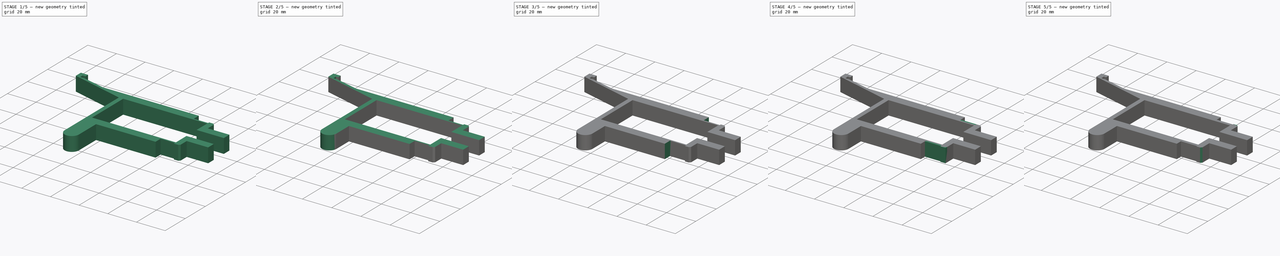
[diagram: build sequence overview — one tinted view per stage of 5, left to right]
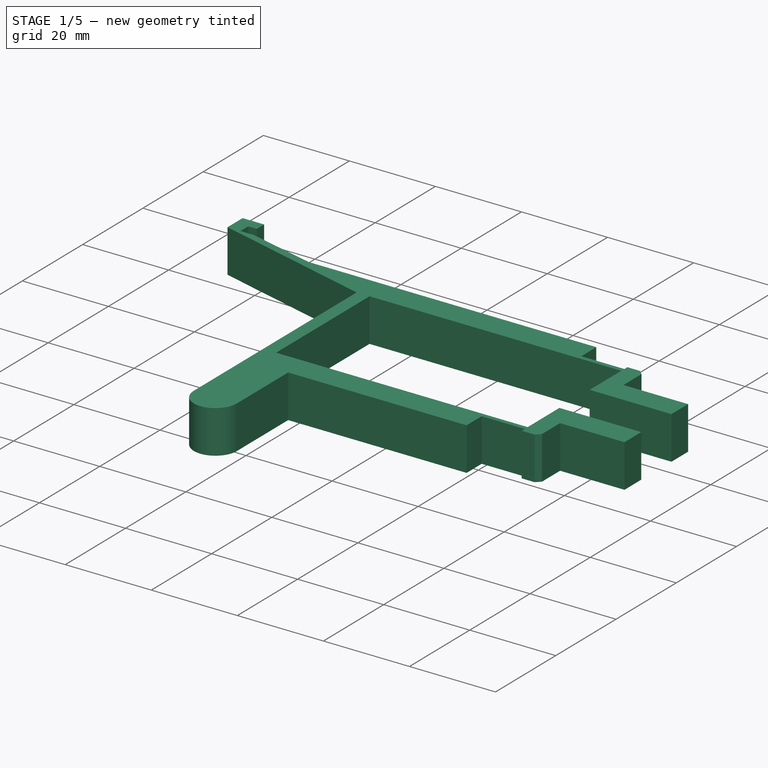
[diagram: stage 1 of 5 — iso view after this stage's code; geometry added in this stage tinted green]
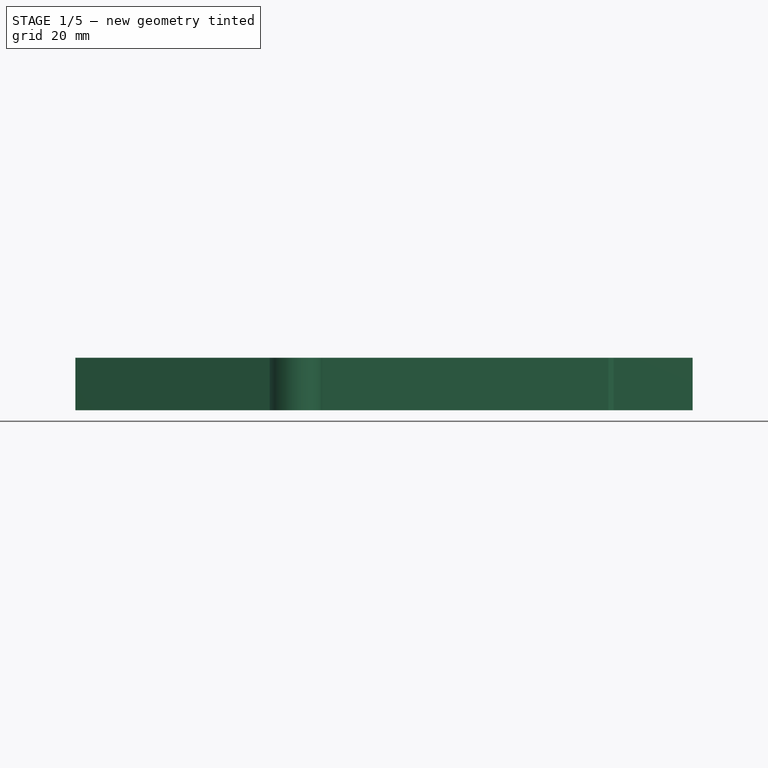
[diagram: stage 1 of 5 — front view after this stage's code; geometry added in this stage tinted green]
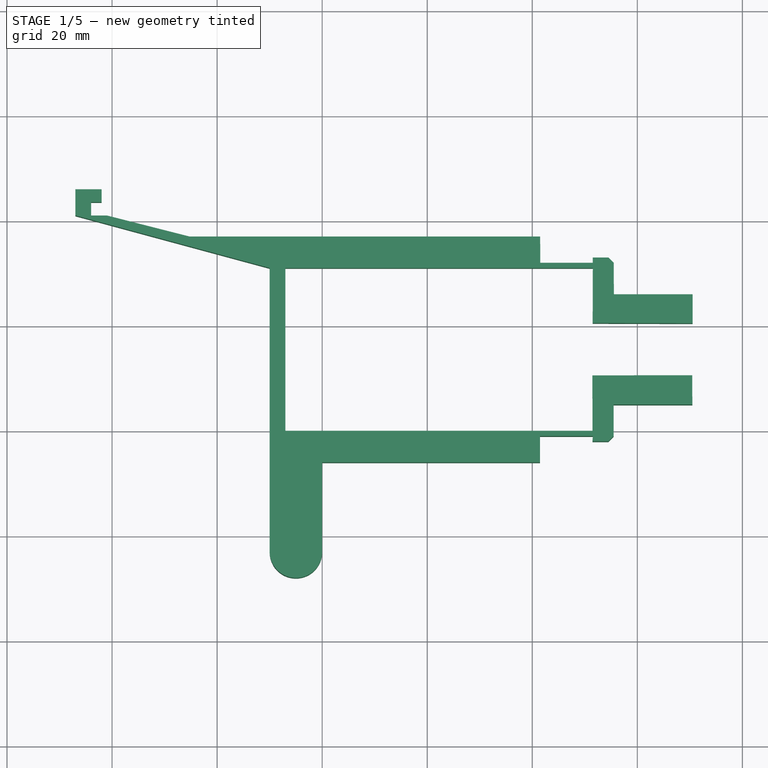
[diagram: stage 1 of 5 — top view after this stage's code; geometry added in this stage tinted green]
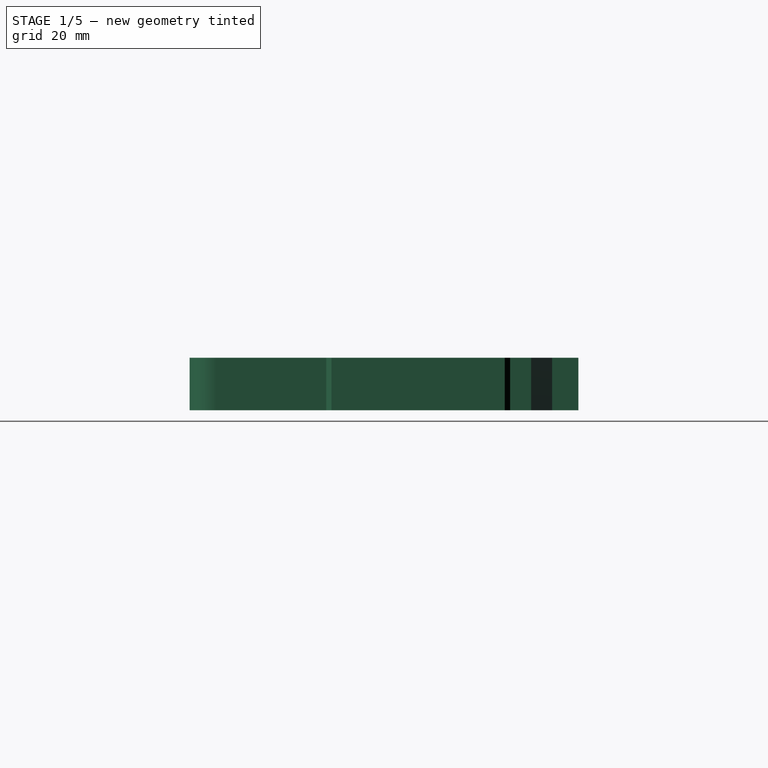
[diagram: stage 1 of 5 — right view after this stage's code; geometry added in this stage tinted green]
FCSTD DOCUMENT  (FreeCAD 0.18R16110 (Git))
Label: sop_baterias
License: All rights reserved
LicenseURL: http://en.wikipedia.org/wiki/All_rights_reserved
objects: Sketcher::SketchObject×13, PartDesign::Pad×6, PartDesign::Pocket×6, PartDesign::Chamfer×4, PartDesign::Body×3
note: 44 computed .brp shape members not serialized (recipe doc carries the construction recipe); baked Part::Feature solids carry a one-line shape summary decoded from their .brp

FEATURE [Sketcher::SketchObject] Sketch
  MapMode = 5
  Support = -> [XY_Plane]
  sketch-geometry (34):
    g0: LineSegment StartX=-7 StartY=0 StartZ=0 EndX=-7 EndY=31 EndZ=0
    g1: LineSegment StartX=-7 StartY=31 StartZ=0 EndX=51.5282 EndY=31 EndZ=0
    g2: LineSegment StartX=51.5282 StartY=31 StartZ=0 EndX=51.4963 EndY=20.5302 EndZ=0
    g3: LineSegment StartX=51.4465 StartY=10.555 StartZ=0 EndX=51.469 EndY=0 EndZ=0
    g4: LineSegment StartX=51.469 StartY=0 StartZ=0 EndX=-7 EndY=0 EndZ=0
    g5: LineSegment StartX=0 StartY=-6 StartZ=0 EndX=3.29e-14 EndY=-23 EndZ=0
    g6: ArcOfCircle CenterX=-5 CenterY=-23.0044 CenterZ=0 NormalX=0 NormalY=0 NormalZ=1 AngleXU=0 Radius=5 StartAngle=3.14071 EndAngle=6.28407
    g7: LineSegment StartX=-10 StartY=-23 StartZ=0 EndX=-10 EndY=31 EndZ=0
    g8: LineSegment StartX=-47 StartY=41 StartZ=0 EndX=-10 EndY=31 EndZ=0
    g9: LineSegment StartX=-47 StartY=41 StartZ=0 EndX=-47 EndY=46 EndZ=0
    g10: LineSegment StartX=-47 StartY=46 StartZ=0 EndX=-42 EndY=46 EndZ=0
    g11: LineSegment StartX=-42 StartY=46 StartZ=0 EndX=-42 EndY=43.55 EndZ=0
    g12: LineSegment StartX=-42 StartY=43.55 StartZ=0 EndX=-44 EndY=43.5476 EndZ=0
    g13: LineSegment StartX=-44 StartY=43.5476 StartZ=0 EndX=-44 EndY=41 EndZ=0
    g14: LineSegment StartX=-44 StartY=41 StartZ=0 EndX=-40.9789 EndY=41 EndZ=0
    g15: LineSegment StartX=-40.9789 StartY=41 StartZ=0 EndX=-25.2581 EndY=37 EndZ=0
    g16: LineSegment StartX=41.4985 StartY=37 StartZ=0 EndX=-25.2581 EndY=37 EndZ=0
    g17: LineSegment StartX=0 StartY=-6 StartZ=0 EndX=41.4771 EndY=-6 EndZ=0
    g18: LineSegment StartX=41.4985 StartY=37 StartZ=0 EndX=41.5299 EndY=32 EndZ=0
    g19: LineSegment StartX=41.5299 StartY=32 StartZ=0 EndX=51.5246 EndY=32 EndZ=0
    g20: LineSegment StartX=51.5246 StartY=32 StartZ=0 EndX=51.5246 EndY=33 EndZ=0
    g21: LineSegment StartX=51.5246 StartY=33 StartZ=0 EndX=55.5112 EndY=33 EndZ=0
    g22: LineSegment StartX=55.5112 StartY=33 StartZ=0 EndX=55.5306 EndY=26 EndZ=0
    g23: LineSegment StartX=55.5306 StartY=26 StartZ=0 EndX=70.5419 EndY=26 EndZ=0
    g24: LineSegment StartX=70.5419 StartY=26 StartZ=0 EndX=70.5419 EndY=20.4833 EndZ=0
    g25: LineSegment StartX=70.5419 StartY=20.4833 StartZ=0 EndX=51.4963 EndY=20.5302 EndZ=0
    g26: LineSegment StartX=41.4771 StartY=-6 StartZ=0 EndX=41.4771 EndY=-1 EndZ=0
    g27: LineSegment StartX=41.4771 StartY=-1 StartZ=0 EndX=51.5337 EndY=-1 EndZ=0
    g28: LineSegment StartX=51.5337 StartY=-1 StartZ=0 EndX=51.4637 EndY=-2 EndZ=0
    g29: LineSegment StartX=51.4637 StartY=-2 StartZ=0 EndX=55.497 EndY=-2 EndZ=0
    g30: LineSegment StartX=55.497 StartY=-2 StartZ=0 EndX=55.497 EndY=5 EndZ=0
    g31: LineSegment StartX=55.497 StartY=5 StartZ=0 EndX=70.4774 EndY=5 EndZ=0
    g32: LineSegment StartX=70.4774 StartY=5 StartZ=0 EndX=70.4536 EndY=10.5801 EndZ=0
    g33: LineSegment StartX=51.4465 StartY=10.555 StartZ=0 EndX=70.4536 EndY=10.5801 EndZ=0
  constraints (31):
    c: Coincident(g0,g1)
    c: Coincident(g1,g2)
    c: Coincident(g3,g4)
    c: Coincident(g4,g0)
    c: Coincident(g6,g5)
    c: Coincident(g9,g10)
    c: Coincident(g10,g11)
    c: Coincident(g11,g12)
    c: Coincident(g12,g13)
    c: Coincident(g13,g14)
    c: Coincident(g14,g15)
    c: Coincident(g15,g16)
    c: Coincident(g5,g17)
    c: Coincident(g16,g18)
    c: Coincident(g18,g19)
    c: Coincident(g19,g20)
    c: Coincident(g20,g21)
    c: Coincident(g22,g23)
    c: Coincident(g23,g24)
    c: Coincident(g24,g25)
    c: Coincident(g2,g25)
    c: Coincident(g17,g26)
    c: Coincident(g26,g27)
    c: Coincident(g27,g28)
    c: Coincident(g28,g29)
    c: Coincident(g29,g30)
    c: Coincident(g30,g31)
    c: Coincident(g31,g32)
    c: Coincident(g32,g33)
    c: Coincident(g3,g33)
    c: Coincident(g22,g21)
FEATURE [PartDesign::Pad] Pad
  Length = 10
  Length2 = 100
  Profile = -> Sketch
  Type = 0
FEATURE [PartDesign::Chamfer] Chamfer
  Base = -> Pad [Edge26]
  BaseFeature = -> Pad
  Size = 1
FEATURE [PartDesign::Chamfer] Chamfer001
  Base = -> Chamfer [Edge96]
  BaseFeature = -> Chamfer
  Size = 1
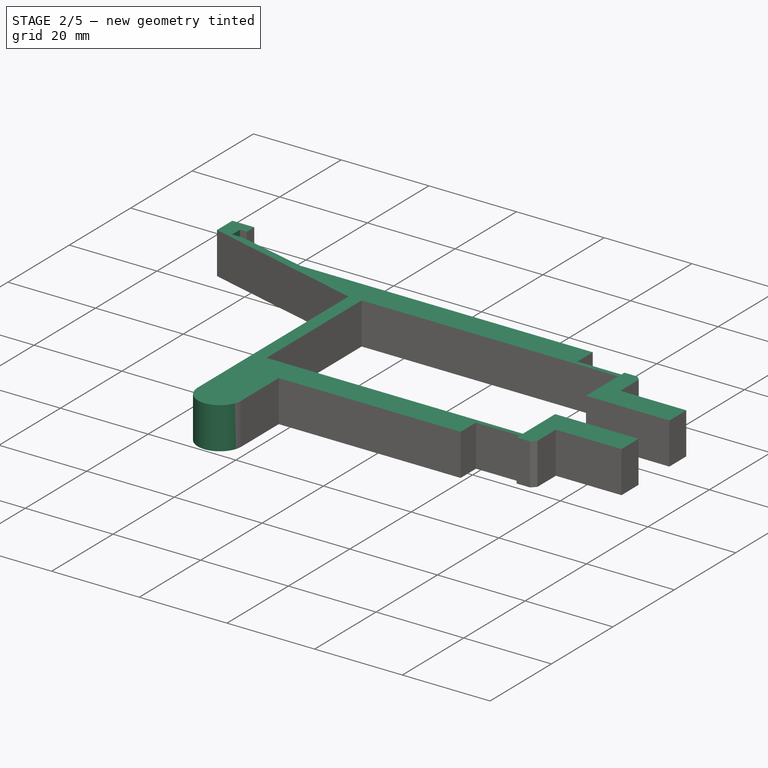
[diagram: stage 2 of 5 — iso view after this stage's code; geometry added in this stage tinted green]
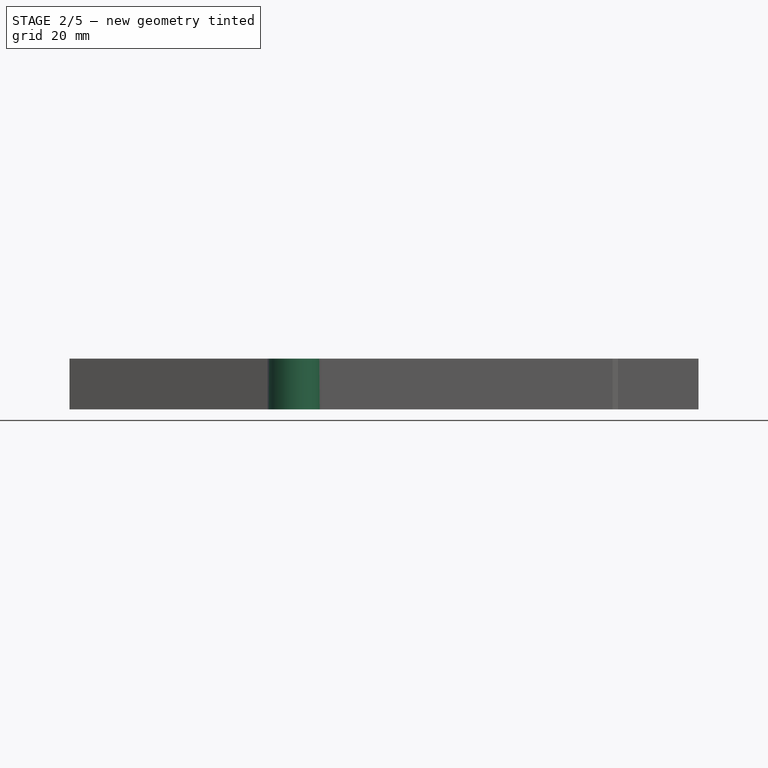
[diagram: stage 2 of 5 — front view after this stage's code; geometry added in this stage tinted green]
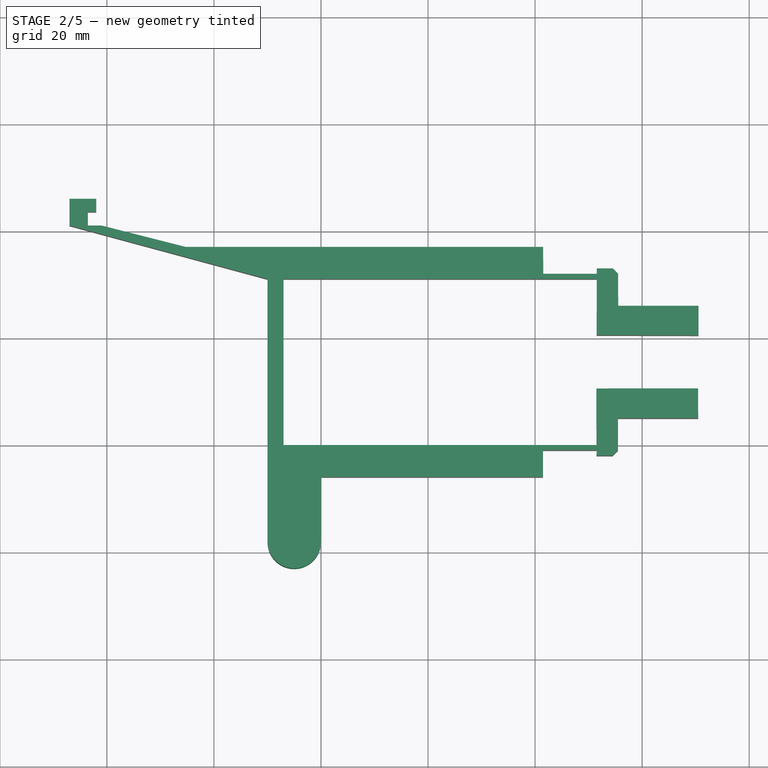
[diagram: stage 2 of 5 — top view after this stage's code; geometry added in this stage tinted green]
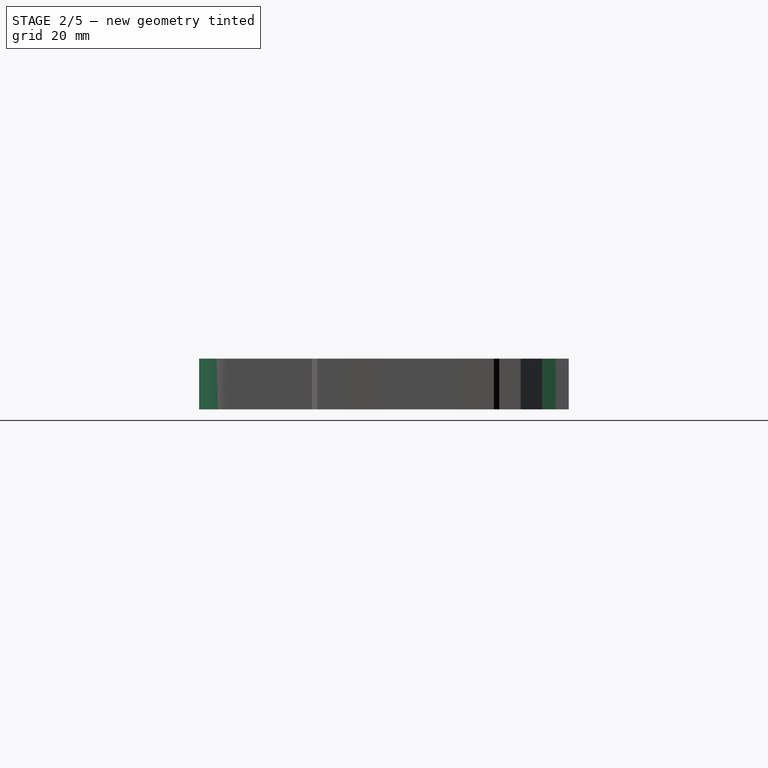
[diagram: stage 2 of 5 — right view after this stage's code; geometry added in this stage tinted green]
FEATURE [Sketcher::SketchObject] Sketch001
  MapMode = 5
  Placement = pos=(-44,0,0) rot=(0.57735,0.57735,0.57735;2.0944rad)
  Support = -> [Chamfer001]
  sketch-geometry (4):
    g0: LineSegment StartX=41 StartY=10 StartZ=0 EndX=43.5484 EndY=10 EndZ=0
    g1: LineSegment StartX=43.5484 StartY=10 StartZ=0 EndX=43.5484 EndY=0 EndZ=0
    g2: LineSegment StartX=43.5484 StartY=0 StartZ=0 EndX=41 EndY=0 EndZ=0
    g3: LineSegment StartX=41 StartY=0 StartZ=0 EndX=41 EndY=10 EndZ=0
  constraints (8):
    c: Coincident(g0,g1)
    c: Coincident(g1,g2)
    c: Coincident(g2,g3)
    c: Coincident(g3,g0)
    c: Horizontal(g0)
    c: Horizontal(g2)
    c: Vertical(g1)
    c: Vertical(g3)
FEATURE [PartDesign::Pad] Pad001
  BaseFeature = -> Chamfer001
  Length = 0.45
  Length2 = 100
  Profile = -> Sketch001
  Type = 0
FEATURE [Sketcher::SketchObject] Sketch002
  MapMode = 5
  Placement = pos=(0,0,10) rot=(0,0,1;0rad)
  Support = -> [Pad001]
  sketch-geometry (5):
    g0: LineSegment StartX=-10.0077 StartY=-23.0046 StartZ=0 EndX=-10 EndY=-18 EndZ=0
    g1: LineSegment StartX=-2.29017e-06 StartY=-18 StartZ=0 EndX=0.00786833 EndY=-23.0049 EndZ=0
    g2: LineSegment StartX=-4.71727 StartY=-28.0001 StartZ=0 EndX=-5.28256 EndY=-28.0001 EndZ=0
    g3: ArcOfCircle CenterX=-5 CenterY=-18.0611 CenterZ=0 NormalX=0 NormalY=0 NormalZ=1 AngleXU=0 Radius=5.00037 StartAngle=3.12938 EndAngle=6.2954
    g4: ArcOfCircle CenterX=-4.99991 CenterY=-23.0003 CenterZ=0 NormalX=0 NormalY=0 NormalZ=1 AngleXU=0 Radius=5.00778 StartAngle=3.14246 EndAngle=6.28227
  constraints (5):
    c: Coincident(g3,g0)
    c: Coincident(g0,g4)
    c: PointOnObject(g2,g4)
    c: PointOnObject(g2,g4)
    c: Coincident(g1,g4)
FEATURE [PartDesign::Pocket] Pocket
  BaseFeature = -> Pad001
  Length = 1020
  Length2 = 100
  Profile = -> Sketch002
  Type = 0
FEATURE [Sketcher::SketchObject] Sketch003
  MapMode = 5
  Placement = pos=(0,0,10) rot=(0,0,1;0rad)
  Support = -> [Pocket]
  sketch-geometry (4):
    g0: LineSegment StartX=-50 StartY=50 StartZ=0 EndX=80 EndY=50 EndZ=0
    g1: LineSegment StartX=80 StartY=50 StartZ=0 EndX=80 EndY=-30 EndZ=0
    g2: LineSegment StartX=80 StartY=-30 StartZ=0 EndX=-50 EndY=-30 EndZ=0
    g3: LineSegment StartX=-50 StartY=-30 StartZ=0 EndX=-50 EndY=50 EndZ=0
  constraints (4):
    c: Coincident(g0,g1)
    c: Coincident(g1,g2)
    c: Coincident(g2,g3)
    c: Coincident(g3,g0)
FEATURE [PartDesign::Body] Body
  Group = -> [Sketch,Pad,Chamfer,Chamfer001,Sketch001,Pad001,Sketch002,Pocket,Sketch003]
  Origin = -> Origin
  Tip = -> Pocket
FEATURE [PartDesign::Body] Body001
  Origin = -> Origin001
FEATURE [Sketcher::SketchObject] Sketch005
  MapMode = 5
  Placement = pos=(0,-6,0) rot=(1,0,0;1.5708rad)
  sketch-geometry (4):
    g0: LineSegment StartX=41 StartY=0 StartZ=0 EndX=41.5032 EndY=0 EndZ=0
    g1: LineSegment StartX=41.5032 StartY=0 StartZ=0 EndX=41.5016 EndY=9.50732 EndZ=0
    g2: LineSegment StartX=41.5016 StartY=9.50732 StartZ=0 EndX=40.9896 EndY=9.50984 EndZ=0
    g3: LineSegment StartX=40.9896 StartY=9.50984 StartZ=0 EndX=41 EndY=0 EndZ=0
  constraints (4):
    c: Coincident(g0,g1)
    c: Coincident(g1,g2)
    c: Coincident(g2,g3)
    c: Coincident(g3,g0)
FEATURE [PartDesign::Pocket] Pocket001
  Length = 0.5
  Length2 = 100
  Profile = -> Sketch003
  Type = 0
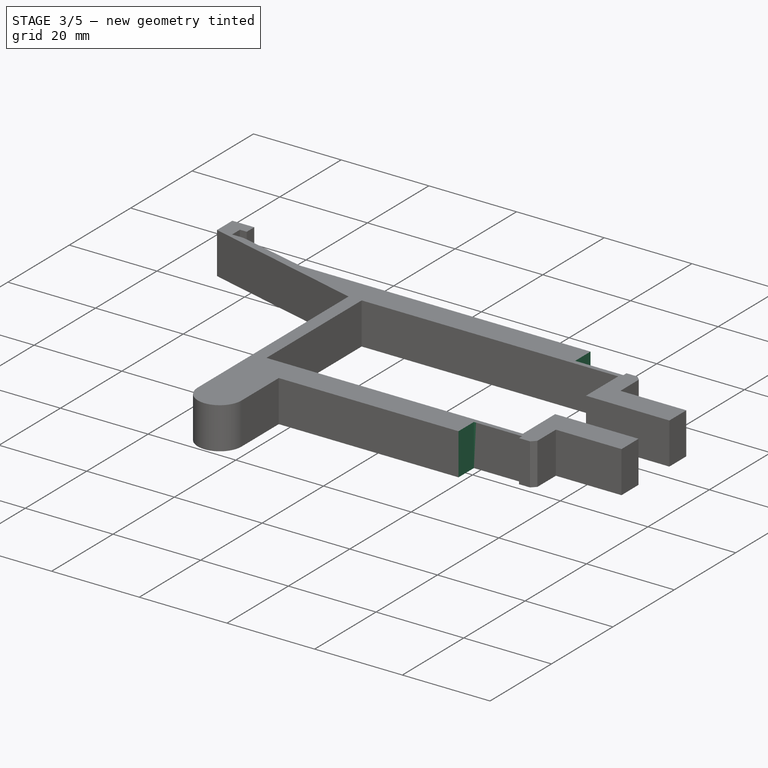
[diagram: stage 3 of 5 — iso view after this stage's code; geometry added in this stage tinted green]
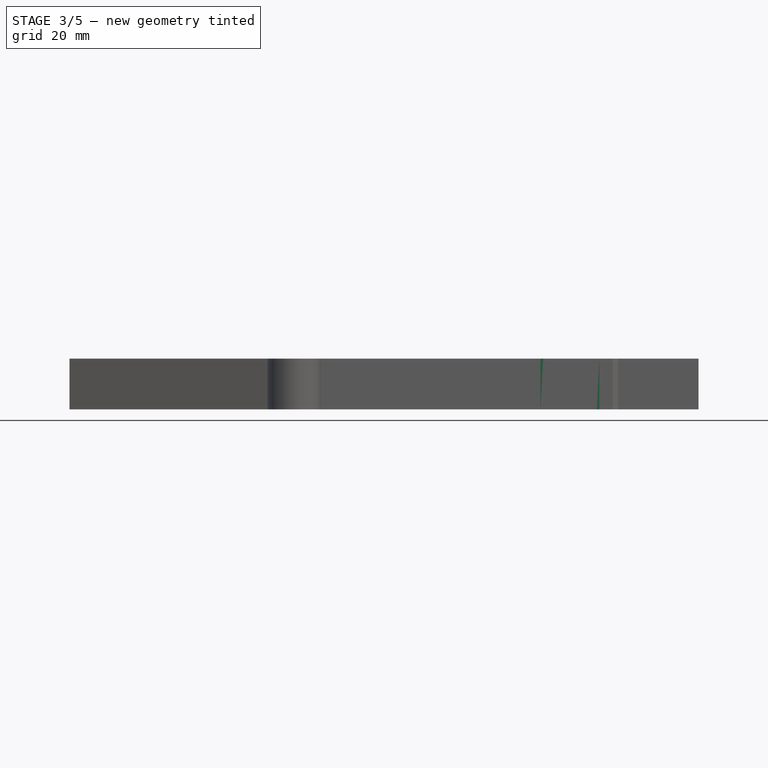
[diagram: stage 3 of 5 — front view after this stage's code; geometry added in this stage tinted green]
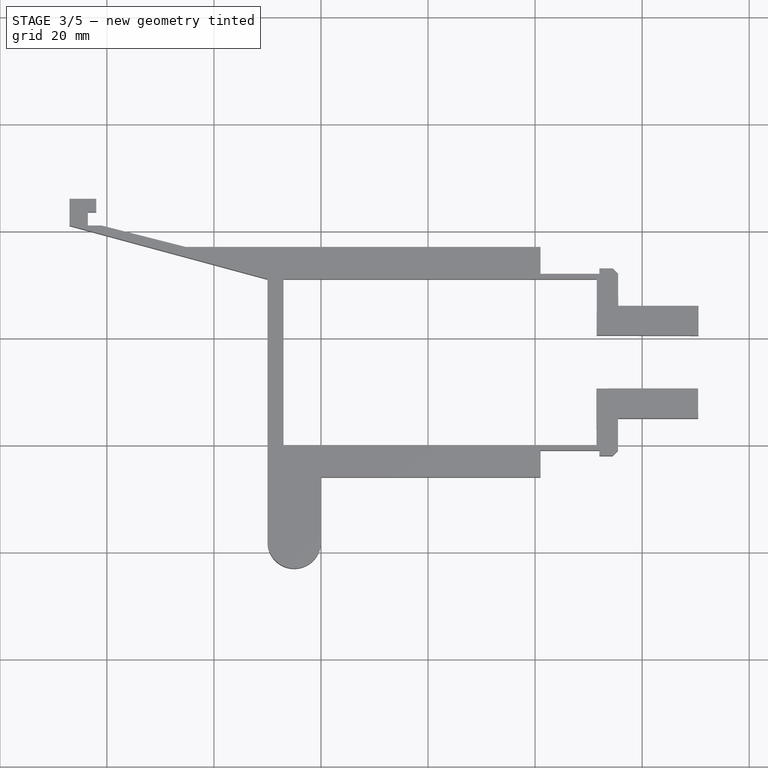
[diagram: stage 3 of 5 — top view after this stage's code; geometry added in this stage tinted green]
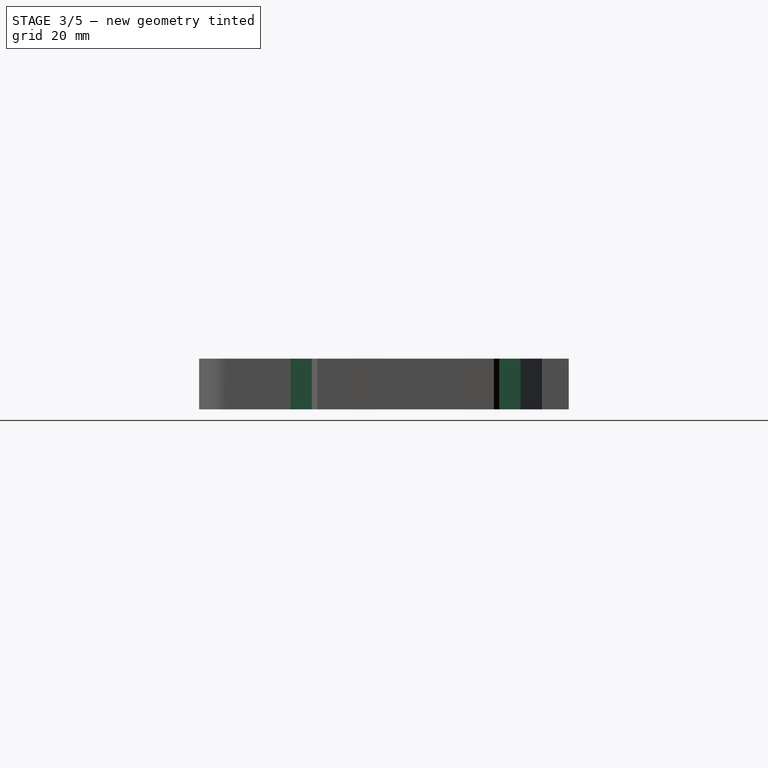
[diagram: stage 3 of 5 — right view after this stage's code; geometry added in this stage tinted green]
FEATURE [Sketcher::SketchObject] Sketch004
  MapMode = 5
  Placement = pos=(0,37,0) rot=(0,0.707107,0.707107;3.14159rad)
  Support = -> [Pocket001]
  sketch-geometry (4):
    g0: LineSegment StartX=-41 StartY=-0.229916 StartZ=0 EndX=-41.6486 EndY=-0.287341 EndZ=0
    g1: LineSegment StartX=-41.6486 StartY=-0.287341 StartZ=0 EndX=-41.6727 EndY=9.52591 EndZ=0
    g2: LineSegment StartX=-41.6727 StartY=9.52591 StartZ=0 EndX=-41 EndY=9.54024 EndZ=0
    g3: LineSegment StartX=-41 StartY=9.54024 StartZ=0 EndX=-41 EndY=-0.229916 EndZ=0
  constraints (4):
    c: Coincident(g0,g1)
    c: Coincident(g1,g2)
    c: Coincident(g2,g3)
    c: Coincident(g3,g0)
FEATURE [PartDesign::Pocket] Pocket002
  BaseFeature = -> Pocket001
  Length = 5
  Length2 = 100
  Profile = -> Sketch004
  Type = 0
FEATURE [PartDesign::Pocket] Pocket003
  BaseFeature = -> Pocket002
  Length = 5.001
  Length2 = 100
  Profile = -> Sketch005
  Type = 0
FEATURE [Sketcher::SketchObject] Sketch006
  MapMode = 5
  Placement = pos=(0,33,0) rot=(0,0.707107,0.707107;3.14159rad)
  Support = -> [Pocket003]
  sketch-geometry (4):
    g0: LineSegment StartX=-51.4965 StartY=0 StartZ=0 EndX=-52 EndY=0 EndZ=0
    g1: LineSegment StartX=-52 StartY=0 StartZ=0 EndX=-52 EndY=9.50483 EndZ=0
    g2: LineSegment StartX=-52 StartY=9.50483 StartZ=0 EndX=-51.5166 EndY=9.50872 EndZ=0
    g3: LineSegment StartX=-51.5166 StartY=9.50872 StartZ=0 EndX=-51.4965 EndY=0 EndZ=0
  constraints (4):
    c: Coincident(g0,g1)
    c: Coincident(g1,g2)
    c: Coincident(g2,g3)
    c: Coincident(g3,g0)
FEATURE [PartDesign::Pocket] Pocket004
  BaseFeature = -> Pocket003
  Length = 1
  Length2 = 100
  Profile = -> Sketch006
  Type = 0
FEATURE [Sketcher::SketchObject] Sketch007
  MapMode = 5
  Placement = pos=(0,-2,0) rot=(1,0,0;1.5708rad)
  Support = -> [Pocket004]
  sketch-geometry (4):
    g0: LineSegment StartX=51.4502 StartY=9.52189 StartZ=0 EndX=52 EndY=9.51554 EndZ=0
    g1: LineSegment StartX=52 StartY=9.51554 StartZ=0 EndX=52 EndY=0 EndZ=0
    g2: LineSegment StartX=52 StartY=0 StartZ=0 EndX=51.444 EndY=0 EndZ=0
    g3: LineSegment StartX=51.444 StartY=0 StartZ=0 EndX=51.4502 EndY=9.52189 EndZ=0
  constraints (4):
    c: Coincident(g0,g1)
    c: Coincident(g1,g2)
    c: Coincident(g2,g3)
    c: Coincident(g3,g0)
FEATURE [PartDesign::Pocket] Pocket005
  BaseFeature = -> Pocket004
  Length = 1
  Length2 = 100
  Profile = -> Sketch007
  Type = 0
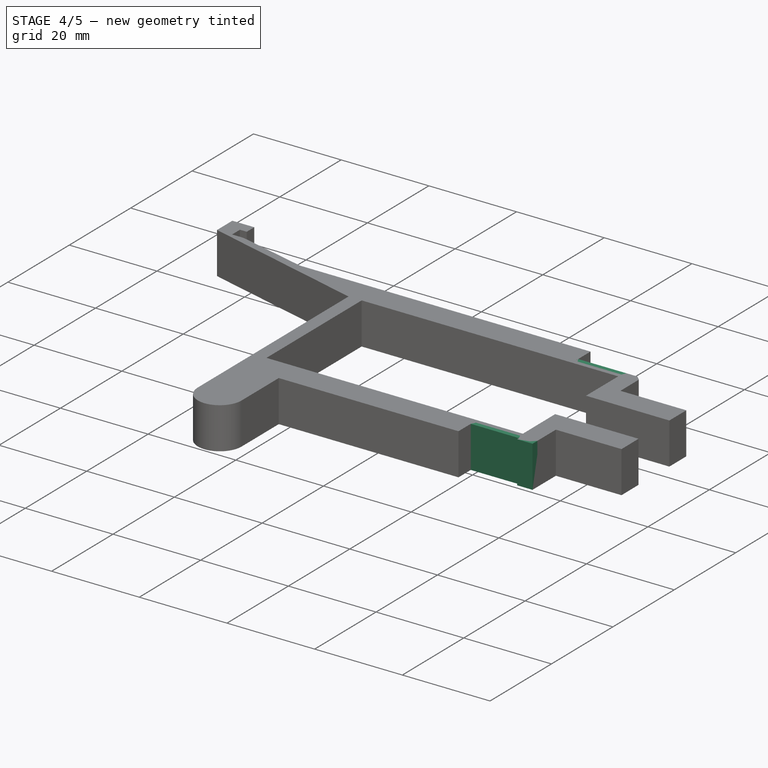
[diagram: stage 4 of 5 — iso view after this stage's code; geometry added in this stage tinted green]
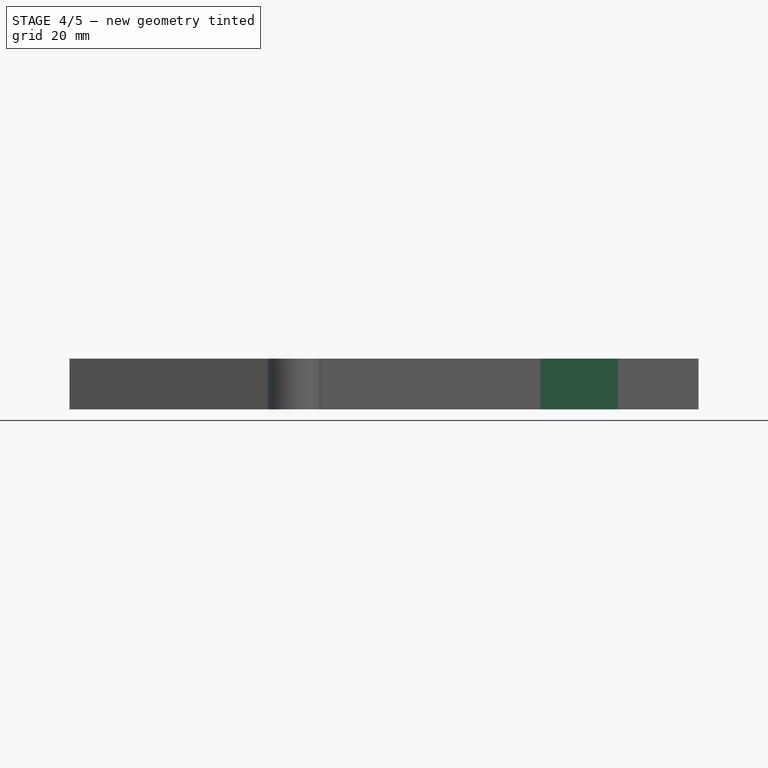
[diagram: stage 4 of 5 — front view after this stage's code; geometry added in this stage tinted green]
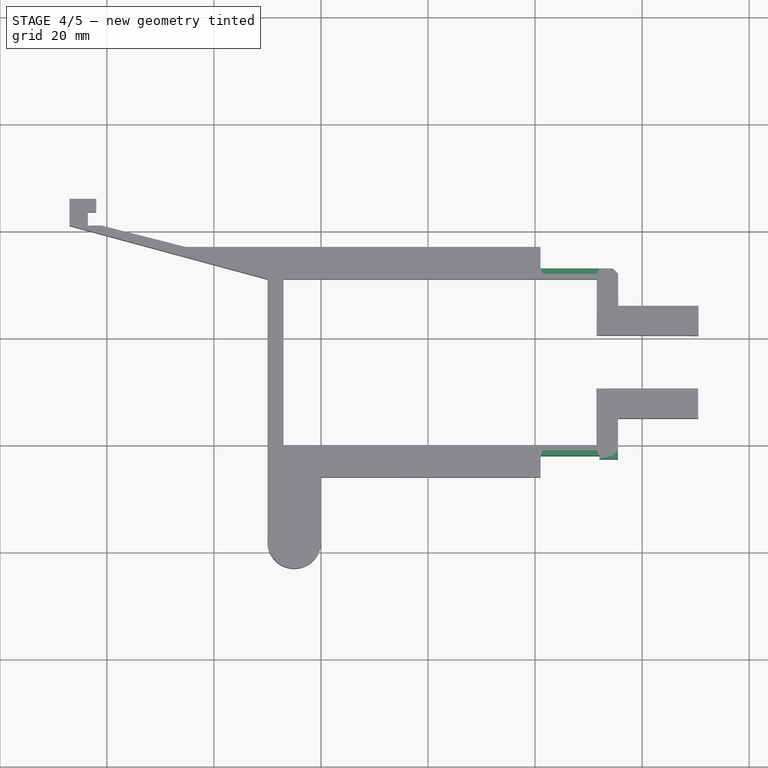
[diagram: stage 4 of 5 — top view after this stage's code; geometry added in this stage tinted green]
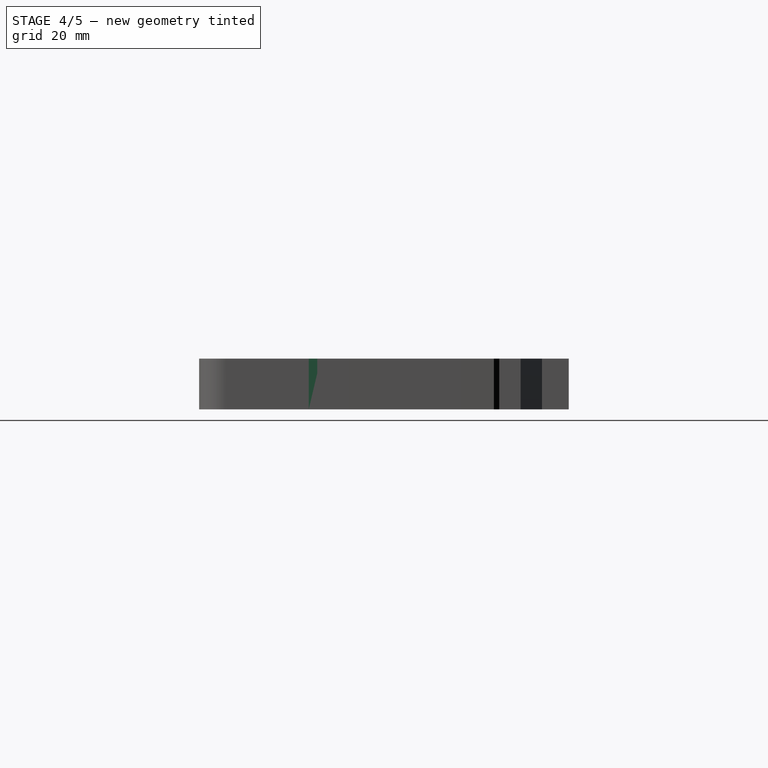
[diagram: stage 4 of 5 — right view after this stage's code; geometry added in this stage tinted green]
FEATURE [Sketcher::SketchObject] Sketch008
  MapMode = 5
  Placement = pos=(0,0,9.5) rot=(0,0,1;0rad)
  Support = -> [Pocket005]
FEATURE [Sketcher::SketchObject] Sketch009
  MapMode = 5
  Placement = pos=(0,32,0) rot=(0,0.707107,0.707107;3.14159rad)
  Support = -> [Pocket005]
  sketch-geometry (4):
    g0: LineSegment StartX=-52 StartY=0 StartZ=0 EndX=-41 EndY=0 EndZ=0
    g1: LineSegment StartX=-41 StartY=0 StartZ=0 EndX=-41 EndY=9.48515 EndZ=0
    g2: LineSegment StartX=-41 StartY=9.48515 StartZ=0 EndX=-52 EndY=9.49928 EndZ=0
    g3: LineSegment StartX=-52 StartY=9.49928 StartZ=0 EndX=-52 EndY=0 EndZ=0
  constraints (4):
    c: Coincident(g0,g1)
    c: Coincident(g1,g2)
    c: Coincident(g2,g3)
    c: Coincident(g3,g0)
FEATURE [PartDesign::Pad] Pad002
  BaseFeature = -> Pocket005
  Length = 1
  Length2 = 100
  Profile = -> Sketch009
  Type = 0
FEATURE [Sketcher::SketchObject] Sketch010
  MapMode = 5
  Placement = pos=(0,-1,0) rot=(1,0,0;1.5708rad)
  Support = -> [Pad002]
  sketch-geometry (4):
    g0: LineSegment StartX=41 StartY=0 StartZ=0 EndX=52 EndY=0 EndZ=0
    g1: LineSegment StartX=52 StartY=0 StartZ=0 EndX=52 EndY=9.4946 EndZ=0
    g2: LineSegment StartX=52 StartY=9.4946 StartZ=0 EndX=41 EndY=9.49995 EndZ=0
    g3: LineSegment StartX=41 StartY=9.49995 StartZ=0 EndX=41 EndY=0 EndZ=0
  constraints (4):
    c: Coincident(g0,g1)
    c: Coincident(g1,g2)
    c: Coincident(g2,g3)
    c: Coincident(g3,g0)
FEATURE [PartDesign::Pad] Pad003
  BaseFeature = -> Pad002
  Length = 1
  Length2 = 100
  Profile = -> Sketch010
  Type = 0
FEATURE [Sketcher::SketchObject] Sketch011
  MapMode = 5
  Placement = pos=(0,5,0) rot=(1,0,0;1.5708rad)
  Support = -> [Pad003]
  sketch-geometry (4):
    g0: LineSegment StartX=52 StartY=0 StartZ=0 EndX=55.4972 EndY=0 EndZ=0
    g1: LineSegment StartX=55.4972 StartY=0 StartZ=0 EndX=55.4969 EndY=9.49942 EndZ=0
    g2: LineSegment StartX=55.4969 StartY=9.49942 StartZ=0 EndX=52 EndY=9.49896 EndZ=0
    g3: LineSegment StartX=52 StartY=9.49896 StartZ=0 EndX=52 EndY=0 EndZ=0
  constraints (4):
    c: Coincident(g0,g1)
    c: Coincident(g1,g2)
    c: Coincident(g2,g3)
    c: Coincident(g3,g0)
FEATURE [PartDesign::Pad] Pad004
  BaseFeature = -> Pad003
  Length = 7.6
  Length2 = 100
  Profile = -> Sketch011
  Type = 0
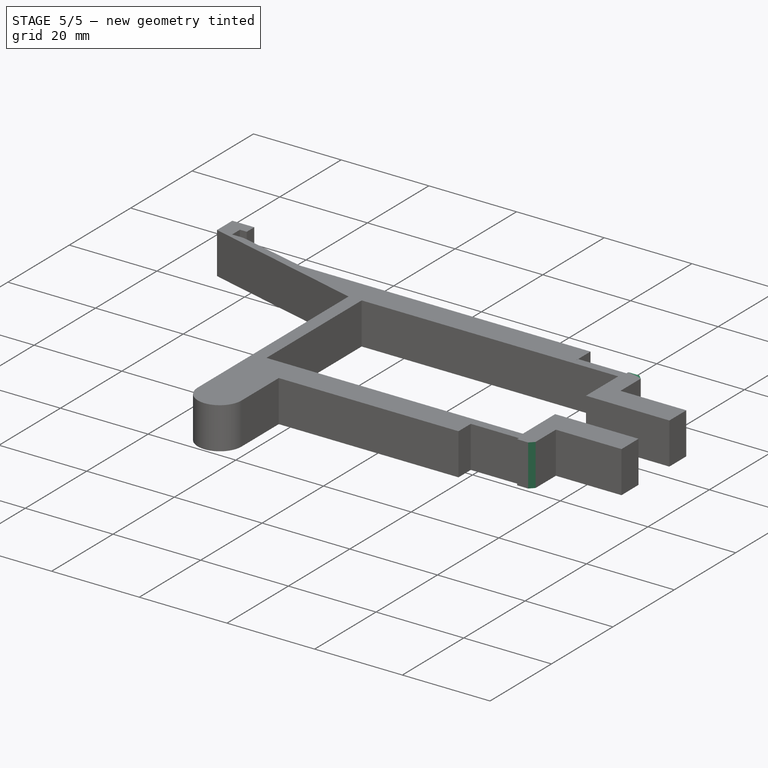
[diagram: stage 5 of 5 — iso view after this stage's code; geometry added in this stage tinted green]
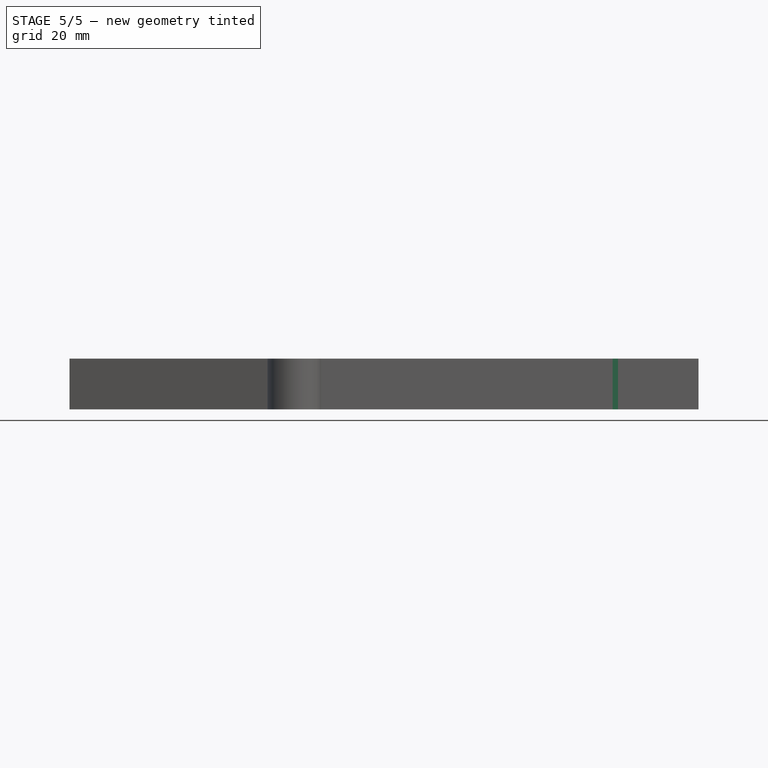
[diagram: stage 5 of 5 — front view after this stage's code; geometry added in this stage tinted green]
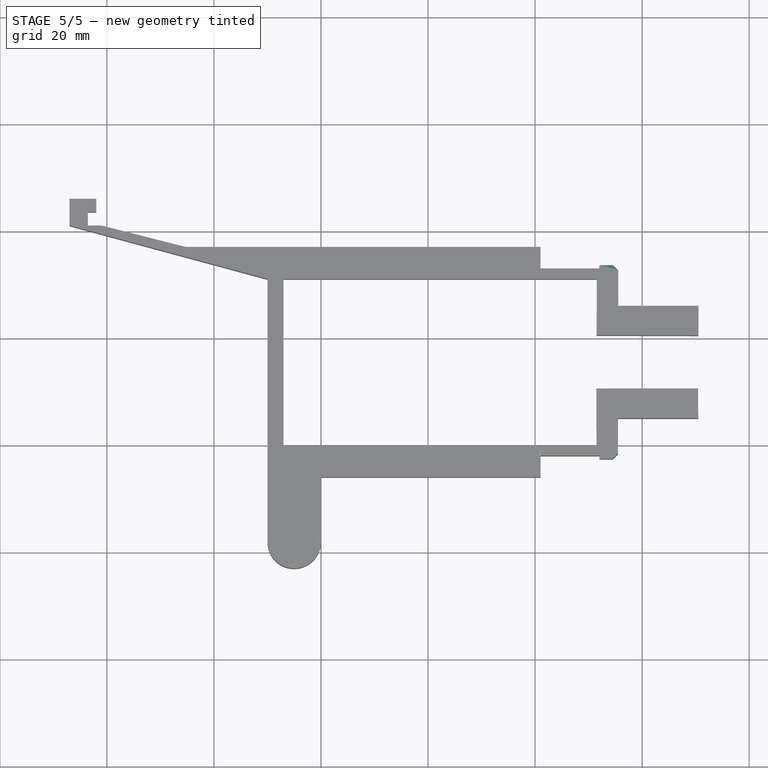
[diagram: stage 5 of 5 — top view after this stage's code; geometry added in this stage tinted green]
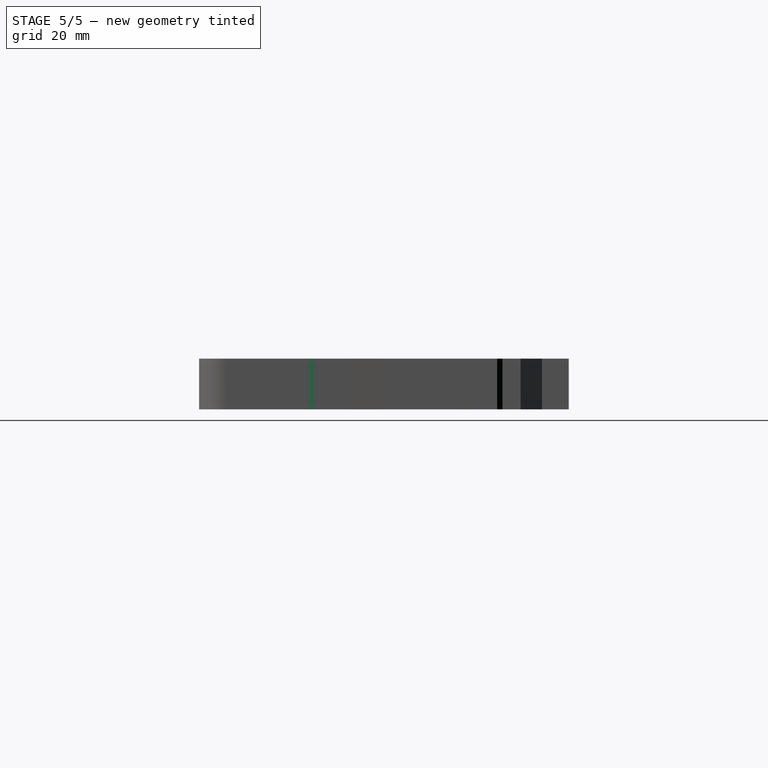
[diagram: stage 5 of 5 — right view after this stage's code; geometry added in this stage tinted green]
FEATURE [PartDesign::Chamfer] Chamfer002
  Base = -> Pad004 [Edge64]
  BaseFeature = -> Pad004
  Size = 1
FEATURE [Sketcher::SketchObject] Sketch012
  MapMode = 5
  Placement = pos=(0,26,0) rot=(0,0.707107,0.707107;3.14159rad)
  Support = -> [Chamfer002]
  sketch-geometry (4):
    g0: LineSegment StartX=-55.5256 StartY=0 StartZ=0 EndX=-52 EndY=0 EndZ=0
    g1: LineSegment StartX=-52 StartY=0 StartZ=0 EndX=-52 EndY=9.49711 EndZ=0
    g2: LineSegment StartX=-52 StartY=9.49711 StartZ=0 EndX=-55.5348 EndY=9.49934 EndZ=0
    g3: LineSegment StartX=-55.5348 StartY=9.49934 StartZ=0 EndX=-55.5256 EndY=0 EndZ=0
  constraints (4):
    c: Coincident(g0,g1)
    c: Coincident(g1,g2)
    c: Coincident(g2,g3)
    c: Coincident(g3,g0)
FEATURE [PartDesign::Pad] Pad005
  BaseFeature = -> Chamfer002
  Length = 7.6
  Length2 = 100
  Profile = -> Sketch012
  Type = 0
FEATURE [PartDesign::Chamfer] Chamfer003
  Base = -> Pad005 [Edge192]
  BaseFeature = -> Pad005
  Size = 1
FEATURE [PartDesign::Body] Body002
  Group = -> [Pocket001,Sketch004,Sketch005,Pocket002,Pocket003,Sketch006,Pocket004,Sketch007,Pocket005,Sketch008,Sketch009,Pad002,Sketch010,Pad003,Sketch011,Pad004,Chamfer002,Sketch012,Pad005,Chamfer003]
  Origin = -> Origin002
  Tip = -> Chamfer003
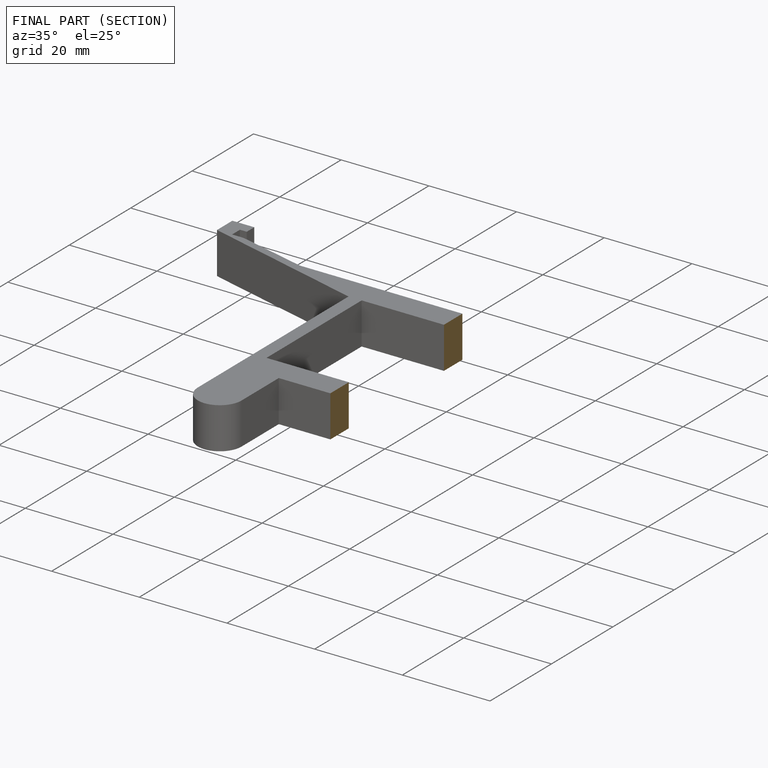
[diagram: finished part — half-section view (interior)]
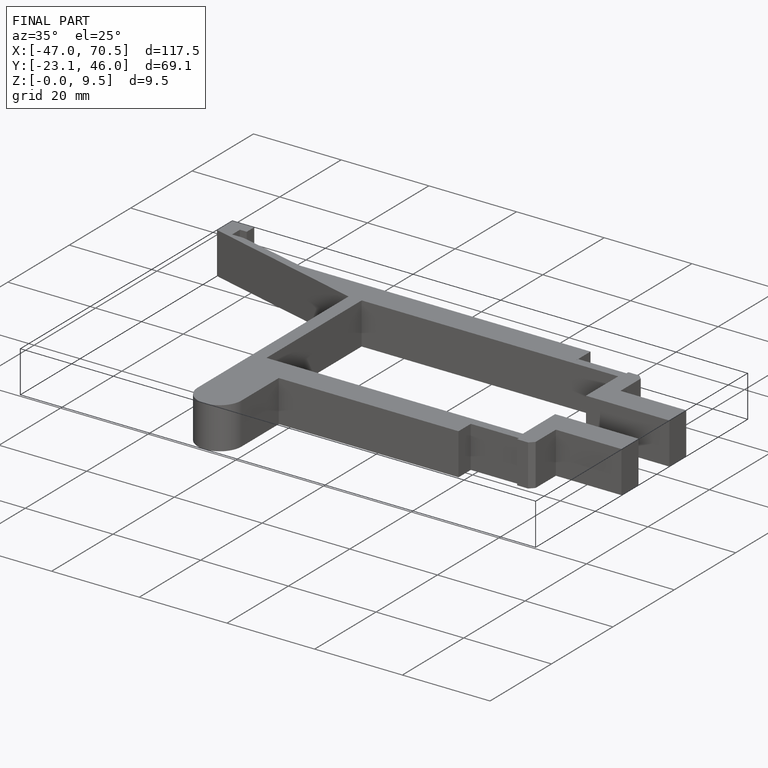
[diagram: finished part — iso view with bounding-box wireframe]
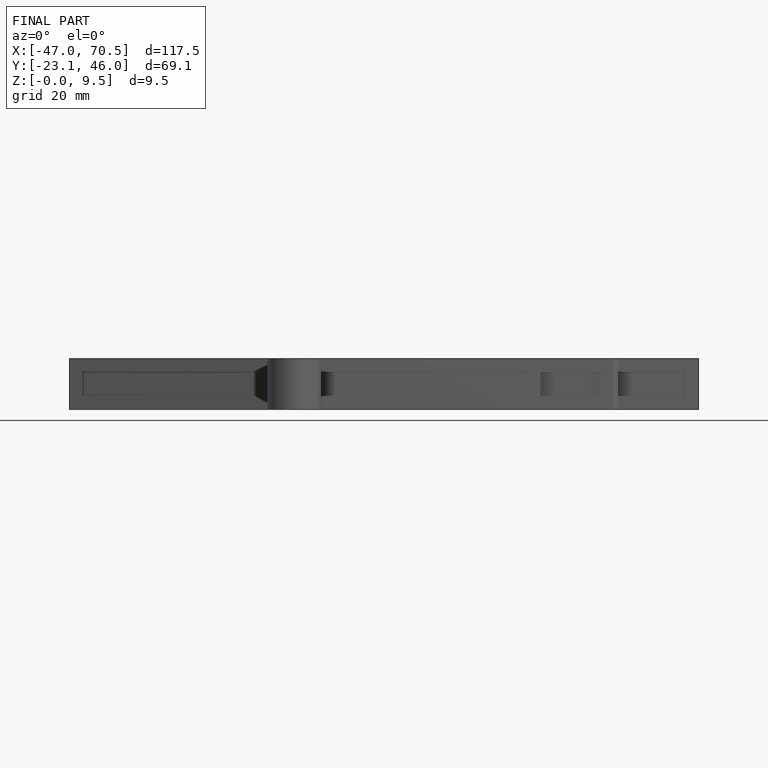
[diagram: finished part — front view with bounding-box wireframe]
